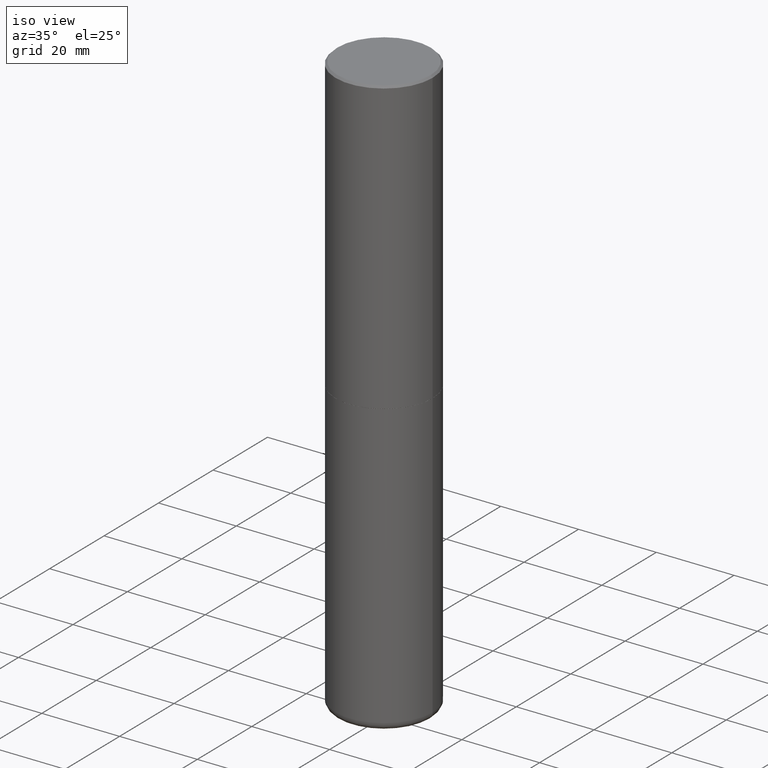
[diagram: clean part render]
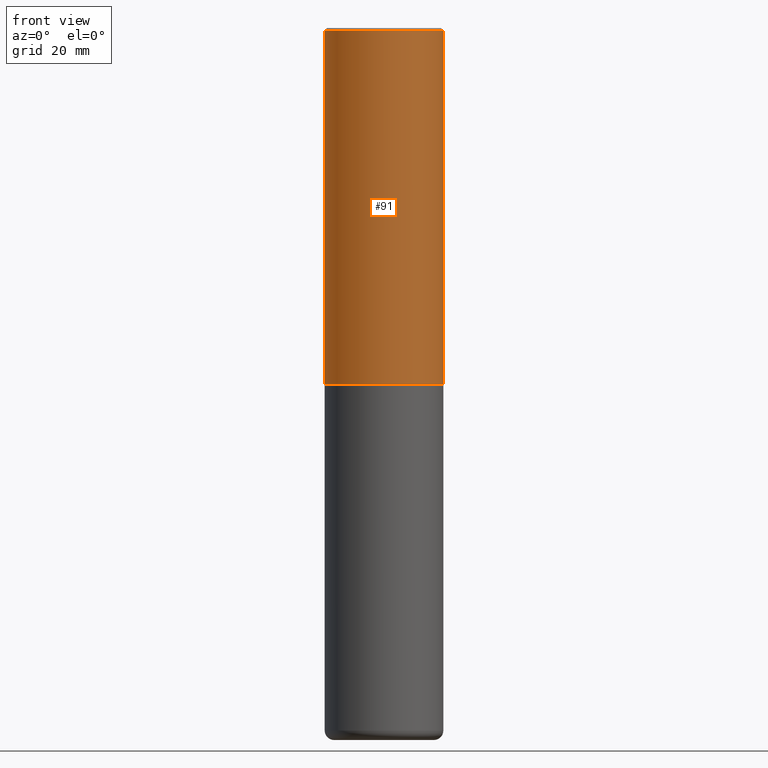
[diagram: tour spotlight — one face highlighted and labeled with its STEP entity id]
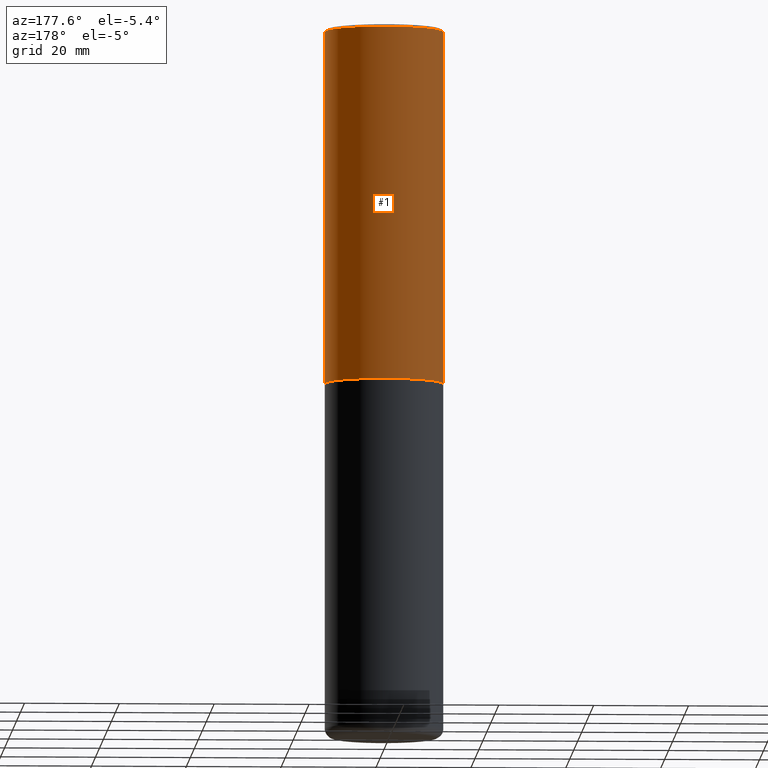
[diagram: tour spotlight — one face highlighted and labeled with its STEP entity id]
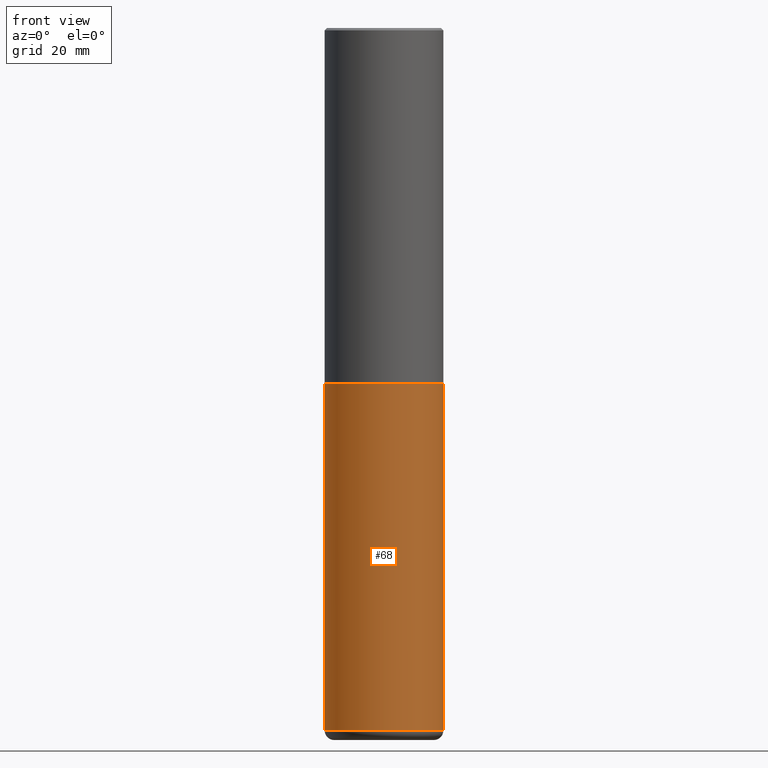
[diagram: tour spotlight — one face highlighted and labeled with its STEP entity id]
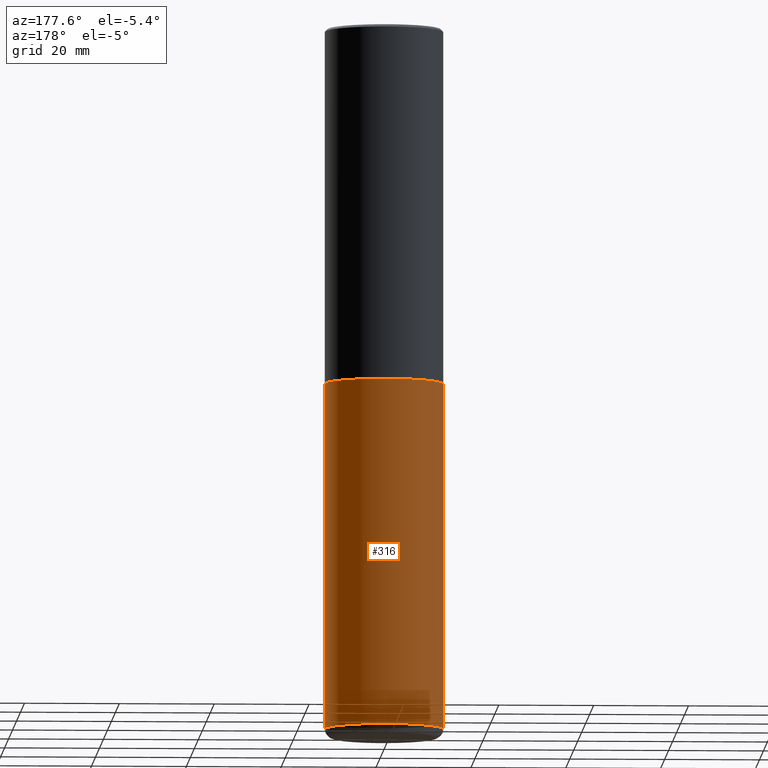
[diagram: tour spotlight — one face highlighted and labeled with its STEP entity id]
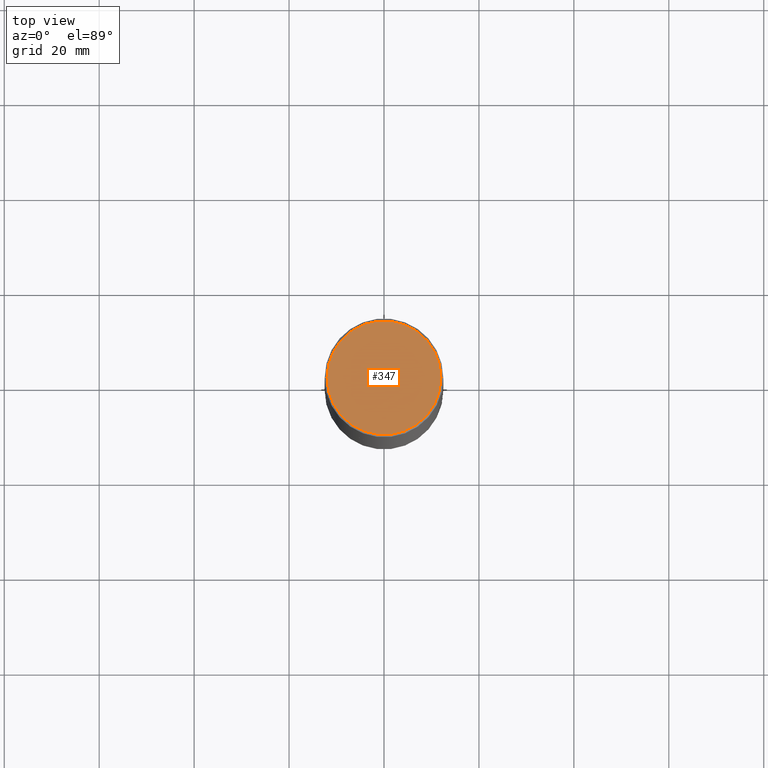
[diagram: tour spotlight — one face highlighted and labeled with its STEP entity id]
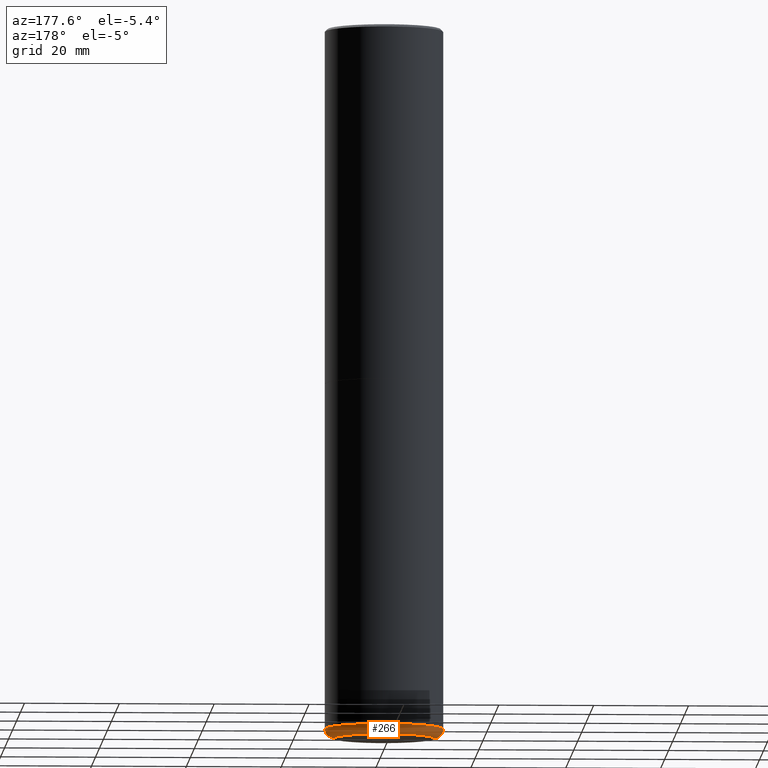
[diagram: tour spotlight — one face highlighted and labeled with its STEP entity id]
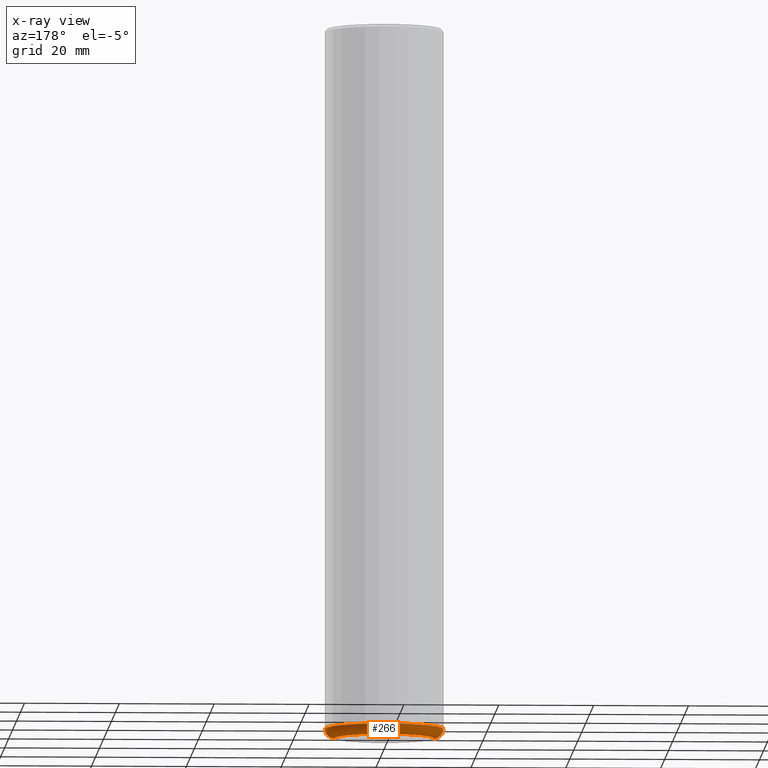
[diagram: x-ray of the same camera — body ghosted, this tour face saturated]
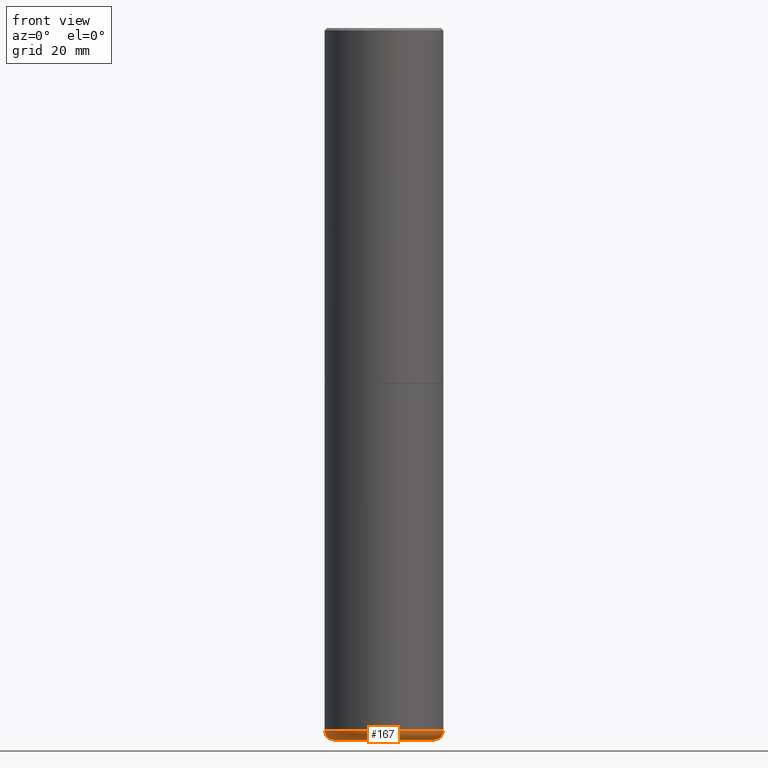
[diagram: tour spotlight — one face highlighted and labeled with its STEP entity id]
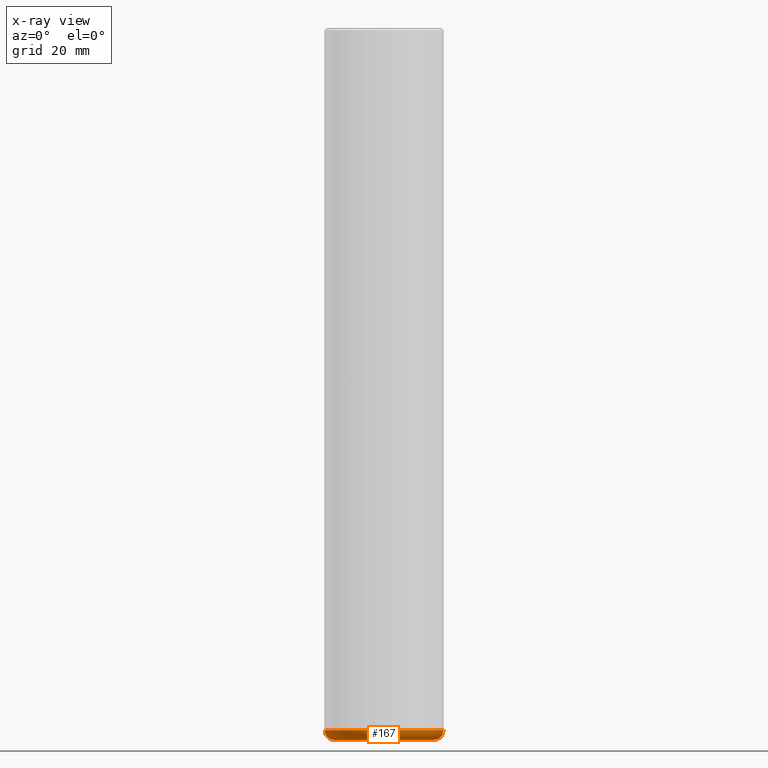
[diagram: x-ray of the same camera — body ghosted, this tour face saturated]
A machine part: a face-by-face anatomy tour. The part has 14 B-rep faces; the first image is the clean iso view, then the 7 largest visible faces are spotlighted one at a time (largest first), each with its STEP entity span.

Face 1 — front view, entity #91. In plain terms, the highlighted cylindrical surface (partial cylindrical patch) has radius 12.5006 mm, axis along (-0, 0, 1).
Definition (entity closure, byte-faithful):
#6 = ORIENTED_EDGE ( 'NONE', *, *, #50, .F. ) ;
#14 = DIRECTION ( 'NONE',  ( -2.445468806185136877E-29, 3.491481338843145188E-15, 1.000000000000000000 ) ) ;
#25 = ORIENTED_EDGE ( 'NONE', *, *, #411, .T. ) ;
#29 = DIRECTION ( 'NONE',  ( -2.445468806185136597E-29, 3.491481338843145583E-15, 1.000000000000000000 ) ) ;
#36 = VERTEX_POINT ( 'NONE', #390 ) ;
#50 = EDGE_CURVE ( 'NONE', #338, #252, #179, .T. ) ;
#70 = VECTOR ( 'NONE', #14, 39.37007874015748143 ) ;
#77 = AXIS2_PLACEMENT_3D ( 'NONE', #333, #29, #335 ) ;
#91 = ADVANCED_FACE ( 'NONE', ( #256 ), #322, .T. ) ;
#140 = EDGE_CURVE ( 'NONE', #338, #273, #337, .T. ) ;
#145 = DIRECTION ( 'NONE',  ( -2.445468806185136597E-29, 3.491481338843145583E-15, 1.000000000000000000 ) ) ;
#153 = DIRECTION ( 'NONE',  ( -2.445468806185136877E-29, 3.491481338843145188E-15, 1.000000000000000000 ) ) ;
#157 = CARTESIAN_POINT ( 'NONE',  ( -0.4921499999999999764, 3.366835455046432478E-15, -0.02000000000000010797 ) ) ;
#163 = CARTESIAN_POINT ( 'NONE',  ( 7.218290275216666916E-29, -1.030580546786331359E-14, -2.951700000000000212 ) ) ;
#174 = EDGE_LOOP ( 'NONE', ( #6, #278, #25, #312 ) ) ;
#175 = LINE ( 'NONE', #315, #70 ) ;
#179 = LINE ( 'NONE', #293, #194 ) ;
#194 = VECTOR ( 'NONE', #153, 39.37007874015748143 ) ;
#216 = EDGE_CURVE ( 'NONE', #252, #36, #326, .T. ) ;
#238 = CARTESIAN_POINT ( 'NONE',  ( -0.4921500000000003094, -1.690881473276751010E-15, -2.951700000000000212 ) ) ;
#252 = VERTEX_POINT ( 'NONE', #157 ) ;
#256 = FACE_OUTER_BOUND ( 'NONE', #174, .T. ) ;
#263 = CARTESIAN_POINT ( 'NONE',  ( 0.000000000000000000, 0.000000000000000000, 0.000000000000000000 ) ) ;
#270 = CARTESIAN_POINT ( 'NONE',  ( 0.4921500000000003094, -1.374247054968661252E-14, -2.951700000000000212 ) ) ;
#271 = DIRECTION ( 'NONE',  ( 1.000000000000000000, -6.982962677686265922E-15, 0.000000000000000000 ) ) ;
#273 = VERTEX_POINT ( 'NONE', #270 ) ;
#274 = AXIS2_PLACEMENT_3D ( 'NONE', #163, #330, #271 ) ;
#278 = ORIENTED_EDGE ( 'NONE', *, *, #140, .T. ) ;
#293 = CARTESIAN_POINT ( 'NONE',  ( -0.4921500000000000874, 3.496936074043333686E-15, -2.420853904668952350E-29 ) ) ;
#312 = ORIENTED_EDGE ( 'NONE', *, *, #216, .F. ) ;
#315 = CARTESIAN_POINT ( 'NONE',  ( 0.4921500000000000874, -3.436665081823296565E-15, 2.399810400207970163E-29 ) ) ;
#322 = CYLINDRICAL_SURFACE ( 'NONE', #375, 0.4921500000000000874 ) ;
#326 = CIRCLE ( 'NONE', #77, 0.4921499999999999764 ) ;
#330 = DIRECTION ( 'NONE',  ( -2.445468806185136597E-29, 3.491481338843145583E-15, 1.000000000000000000 ) ) ;
#333 = CARTESIAN_POINT ( 'NONE',  ( 4.890937612370299433E-31, -6.982962677686328587E-17, -0.02000000000000010797 ) ) ;
#335 = DIRECTION ( 'NONE',  ( 1.000000000000000000, -6.982962677686265922E-15, 0.000000000000000000 ) ) ;
#337 = CIRCLE ( 'NONE', #274, 0.4921500000000003094 ) ;
#338 = VERTEX_POINT ( 'NONE', #238 ) ;
#350 = DIRECTION ( 'NONE',  ( 1.000000000000000000, -6.982962677686265922E-15, 4.876176775795935793E-29 ) ) ;
#375 = AXIS2_PLACEMENT_3D ( 'NONE', #263, #145, #350 ) ;
#390 = CARTESIAN_POINT ( 'NONE',  ( 0.4921499999999999764, -3.446223716380122349E-15, -0.02000000000000010797 ) ) ;
#411 = EDGE_CURVE ( 'NONE', #273, #36, #175, .T. ) ;

Face 2 — auxiliary view, entity #1. In plain terms, the highlighted cylindrical surface (partial cylindrical patch) has radius 12.5006 mm, axis along (-0, 0, 1).
Definition (entity closure, byte-faithful):
#1 = ADVANCED_FACE ( 'NONE', ( #221 ), #219, .T. ) ;
#8 = CIRCLE ( 'NONE', #281, 0.4921500000000003094 ) ;
#14 = DIRECTION ( 'NONE',  ( -2.445468806185136877E-29, 3.491481338843145188E-15, 1.000000000000000000 ) ) ;
#26 = DIRECTION ( 'NONE',  ( -2.445468806185136597E-29, 3.491481338843145583E-15, 1.000000000000000000 ) ) ;
#36 = VERTEX_POINT ( 'NONE', #390 ) ;
#50 = EDGE_CURVE ( 'NONE', #338, #252, #179, .T. ) ;
#55 = EDGE_CURVE ( 'NONE', #273, #338, #8, .T. ) ;
#56 = DIRECTION ( 'NONE',  ( 1.000000000000000000, -6.982962677686265922E-15, 0.000000000000000000 ) ) ;
#70 = VECTOR ( 'NONE', #14, 39.37007874015748143 ) ;
#83 = ORIENTED_EDGE ( 'NONE', *, *, #55, .T. ) ;
#133 = CARTESIAN_POINT ( 'NONE',  ( 4.890937612370299433E-31, -6.982962677686328587E-17, -0.02000000000000010797 ) ) ;
#150 = ORIENTED_EDGE ( 'NONE', *, *, #199, .F. ) ;
#153 = DIRECTION ( 'NONE',  ( -2.445468806185136877E-29, 3.491481338843145188E-15, 1.000000000000000000 ) ) ;
#157 = CARTESIAN_POINT ( 'NONE',  ( -0.4921499999999999764, 3.366835455046432478E-15, -0.02000000000000010797 ) ) ;
#175 = LINE ( 'NONE', #315, #70 ) ;
#178 = AXIS2_PLACEMENT_3D ( 'NONE', #182, #223, #184 ) ;
#179 = LINE ( 'NONE', #293, #194 ) ;
#182 = CARTESIAN_POINT ( 'NONE',  ( 0.000000000000000000, 0.000000000000000000, 0.000000000000000000 ) ) ;
#184 = DIRECTION ( 'NONE',  ( 1.000000000000000000, -6.982962677686265922E-15, 4.876176775795935793E-29 ) ) ;
#194 = VECTOR ( 'NONE', #153, 39.37007874015748143 ) ;
#199 = EDGE_CURVE ( 'NONE', #36, #252, #398, .T. ) ;
#213 = ORIENTED_EDGE ( 'NONE', *, *, #411, .F. ) ;
#219 = CYLINDRICAL_SURFACE ( 'NONE', #178, 0.4921500000000000874 ) ;
#221 = FACE_OUTER_BOUND ( 'NONE', #355, .T. ) ;
#223 = DIRECTION ( 'NONE',  ( -2.445468806185136597E-29, 3.491481338843145583E-15, 1.000000000000000000 ) ) ;
#238 = CARTESIAN_POINT ( 'NONE',  ( -0.4921500000000003094, -1.690881473276751010E-15, -2.951700000000000212 ) ) ;
#252 = VERTEX_POINT ( 'NONE', #157 ) ;
#270 = CARTESIAN_POINT ( 'NONE',  ( 0.4921500000000003094, -1.374247054968661252E-14, -2.951700000000000212 ) ) ;
#273 = VERTEX_POINT ( 'NONE', #270 ) ;
#281 = AXIS2_PLACEMENT_3D ( 'NONE', #353, #295, #56 ) ;
#293 = CARTESIAN_POINT ( 'NONE',  ( -0.4921500000000000874, 3.496936074043333686E-15, -2.420853904668952350E-29 ) ) ;
#295 = DIRECTION ( 'NONE',  ( -2.445468806185136597E-29, 3.491481338843145583E-15, 1.000000000000000000 ) ) ;
#297 = DIRECTION ( 'NONE',  ( 1.000000000000000000, -6.982962677686265922E-15, 0.000000000000000000 ) ) ;
#298 = AXIS2_PLACEMENT_3D ( 'NONE', #133, #26, #297 ) ;
#315 = CARTESIAN_POINT ( 'NONE',  ( 0.4921500000000000874, -3.436665081823296565E-15, 2.399810400207970163E-29 ) ) ;
#338 = VERTEX_POINT ( 'NONE', #238 ) ;
#353 = CARTESIAN_POINT ( 'NONE',  ( 7.218290275216666916E-29, -1.030580546786331359E-14, -2.951700000000000212 ) ) ;
#355 = EDGE_LOOP ( 'NONE', ( #83, #397, #150, #213 ) ) ;
#390 = CARTESIAN_POINT ( 'NONE',  ( 0.4921499999999999764, -3.446223716380122349E-15, -0.02000000000000010797 ) ) ;
#397 = ORIENTED_EDGE ( 'NONE', *, *, #50, .T. ) ;
#398 = CIRCLE ( 'NONE', #298, 0.4921499999999999764 ) ;
#411 = EDGE_CURVE ( 'NONE', #273, #36, #175, .T. ) ;

Face 3 — front view, entity #68. In plain terms, the highlighted cylindrical surface (partial cylindrical patch) has radius 12.5006 mm, axis along (-0, 0, 1).
Definition (entity closure, byte-faithful):
#10 = VERTEX_POINT ( 'NONE', #86 ) ;
#57 = VECTOR ( 'NONE', #400, 39.37007874015748143 ) ;
#68 = ADVANCED_FACE ( 'NONE', ( #358 ), #388, .T. ) ;
#69 = CARTESIAN_POINT ( 'NONE',  ( 7.220735744022852519E-29, -1.030929694920215502E-14, -2.952700000000000102 ) ) ;
#75 = AXIS2_PLACEMENT_3D ( 'NONE', #69, #207, #168 ) ;
#86 = CARTESIAN_POINT ( 'NONE',  ( -0.4921500000000000874, -1.684722739112790810E-14, -5.826799999999999535 ) ) ;
#100 = AXIS2_PLACEMENT_3D ( 'NONE', #190, #185, #329 ) ;
#116 = CIRCLE ( 'NONE', #248, 0.4921499999999999764 ) ;
#120 = VERTEX_POINT ( 'NONE', #288 ) ;
#126 = LINE ( 'NONE', #265, #269 ) ;
#130 = CARTESIAN_POINT ( 'NONE',  ( 0.4921499999999999764, -1.374596203102545079E-14, -2.952700000000000102 ) ) ;
#139 = DIRECTION ( 'NONE',  ( 1.000000000000000000, -6.982962677686265922E-15, 0.000000000000000000 ) ) ;
#154 = VERTEX_POINT ( 'NONE', #130 ) ;
#168 = DIRECTION ( 'NONE',  ( 1.000000000000000000, -6.982962677686265922E-15, 0.000000000000000000 ) ) ;
#171 = ORIENTED_EDGE ( 'NONE', *, *, #299, .T. ) ;
#185 = DIRECTION ( 'NONE',  ( -2.445468806185136597E-29, 3.491481338843145583E-15, 1.000000000000000000 ) ) ;
#190 = CARTESIAN_POINT ( 'NONE',  ( 0.000000000000000000, 0.000000000000000000, 0.000000000000000000 ) ) ;
#203 = EDGE_CURVE ( 'NONE', #10, #205, #126, .T. ) ;
#205 = VERTEX_POINT ( 'NONE', #331 ) ;
#207 = DIRECTION ( 'NONE',  ( -2.445468806185136597E-29, 3.491481338843145583E-15, 1.000000000000000000 ) ) ;
#208 = ORIENTED_EDGE ( 'NONE', *, *, #289, .F. ) ;
#209 = CARTESIAN_POINT ( 'NONE',  ( 1.424925763987955342E-28, -2.034416346517123863E-14, -5.826799999999999535 ) ) ;
#248 = AXIS2_PLACEMENT_3D ( 'NONE', #209, #249, #139 ) ;
#249 = DIRECTION ( 'NONE',  ( -2.445468806185136597E-29, 3.491481338843145583E-15, 1.000000000000000000 ) ) ;
#265 = CARTESIAN_POINT ( 'NONE',  ( -0.4921499999999999764, 3.496936074043332897E-15, -2.420853904668951509E-29 ) ) ;
#269 = VECTOR ( 'NONE', #336, 39.37007874015748143 ) ;
#279 = LINE ( 'NONE', #341, #57 ) ;
#288 = CARTESIAN_POINT ( 'NONE',  ( 0.4921500000000000874, -2.378082854699453914E-14, -5.826799999999999535 ) ) ;
#289 = EDGE_CURVE ( 'NONE', #205, #154, #317, .T. ) ;
#299 = EDGE_CURVE ( 'NONE', #10, #120, #116, .T. ) ;
#317 = CIRCLE ( 'NONE', #75, 0.4921499999999999764 ) ;
#324 = ORIENTED_EDGE ( 'NONE', *, *, #203, .F. ) ;
#329 = DIRECTION ( 'NONE',  ( 1.000000000000000000, -6.982962677686265922E-15, 4.876176775795935793E-29 ) ) ;
#331 = CARTESIAN_POINT ( 'NONE',  ( -0.4921499999999999764, -1.182979413314336550E-14, -2.952700000000000102 ) ) ;
#334 = EDGE_CURVE ( 'NONE', #120, #154, #279, .T. ) ;
#336 = DIRECTION ( 'NONE',  ( -2.445468806185136877E-29, 3.491481338843145188E-15, 1.000000000000000000 ) ) ;
#341 = CARTESIAN_POINT ( 'NONE',  ( 0.4921499999999999764, -3.436665081823295777E-15, 2.399810400207969603E-29 ) ) ;
#358 = FACE_OUTER_BOUND ( 'NONE', #386, .T. ) ;
#371 = ORIENTED_EDGE ( 'NONE', *, *, #334, .T. ) ;
#386 = EDGE_LOOP ( 'NONE', ( #324, #171, #371, #208 ) ) ;
#388 = CYLINDRICAL_SURFACE ( 'NONE', #100, 0.4921499999999999764 ) ;
#400 = DIRECTION ( 'NONE',  ( -2.445468806185136877E-29, 3.491481338843145188E-15, 1.000000000000000000 ) ) ;

Face 4 — auxiliary view, entity #316. In plain terms, the highlighted cylindrical surface (partial cylindrical patch) has radius 12.5006 mm, axis along (-0, 0, 1).
Definition (entity closure, byte-faithful):
#10 = VERTEX_POINT ( 'NONE', #86 ) ;
#17 = DIRECTION ( 'NONE',  ( 1.000000000000000000, -6.982962677686265922E-15, 0.000000000000000000 ) ) ;
#30 = DIRECTION ( 'NONE',  ( -2.445468806185136597E-29, 3.491481338843145583E-15, 1.000000000000000000 ) ) ;
#39 = ORIENTED_EDGE ( 'NONE', *, *, #203, .T. ) ;
#48 = CARTESIAN_POINT ( 'NONE',  ( 1.424925763987955342E-28, -2.034416346517123863E-14, -5.826799999999999535 ) ) ;
#49 = AXIS2_PLACEMENT_3D ( 'NONE', #362, #30, #96 ) ;
#57 = VECTOR ( 'NONE', #400, 39.37007874015748143 ) ;
#86 = CARTESIAN_POINT ( 'NONE',  ( -0.4921500000000000874, -1.684722739112790810E-14, -5.826799999999999535 ) ) ;
#96 = DIRECTION ( 'NONE',  ( 1.000000000000000000, -6.982962677686265922E-15, 0.000000000000000000 ) ) ;
#102 = DIRECTION ( 'NONE',  ( -2.445468806185136597E-29, 3.491481338843145583E-15, 1.000000000000000000 ) ) ;
#106 = AXIS2_PLACEMENT_3D ( 'NONE', #277, #102, #396 ) ;
#111 = EDGE_CURVE ( 'NONE', #120, #10, #369, .T. ) ;
#118 = EDGE_LOOP ( 'NONE', ( #314, #39, #374, #342 ) ) ;
#120 = VERTEX_POINT ( 'NONE', #288 ) ;
#126 = LINE ( 'NONE', #265, #269 ) ;
#130 = CARTESIAN_POINT ( 'NONE',  ( 0.4921499999999999764, -1.374596203102545079E-14, -2.952700000000000102 ) ) ;
#135 = CYLINDRICAL_SURFACE ( 'NONE', #106, 0.4921499999999999764 ) ;
#141 = FACE_OUTER_BOUND ( 'NONE', #118, .T. ) ;
#154 = VERTEX_POINT ( 'NONE', #130 ) ;
#203 = EDGE_CURVE ( 'NONE', #10, #205, #126, .T. ) ;
#205 = VERTEX_POINT ( 'NONE', #331 ) ;
#218 = AXIS2_PLACEMENT_3D ( 'NONE', #48, #320, #17 ) ;
#245 = EDGE_CURVE ( 'NONE', #154, #205, #389, .T. ) ;
#265 = CARTESIAN_POINT ( 'NONE',  ( -0.4921499999999999764, 3.496936074043332897E-15, -2.420853904668951509E-29 ) ) ;
#269 = VECTOR ( 'NONE', #336, 39.37007874015748143 ) ;
#277 = CARTESIAN_POINT ( 'NONE',  ( 0.000000000000000000, 0.000000000000000000, 0.000000000000000000 ) ) ;
#279 = LINE ( 'NONE', #341, #57 ) ;
#288 = CARTESIAN_POINT ( 'NONE',  ( 0.4921500000000000874, -2.378082854699453914E-14, -5.826799999999999535 ) ) ;
#314 = ORIENTED_EDGE ( 'NONE', *, *, #111, .T. ) ;
#316 = ADVANCED_FACE ( 'NONE', ( #141 ), #135, .T. ) ;
#320 = DIRECTION ( 'NONE',  ( -2.445468806185136597E-29, 3.491481338843145583E-15, 1.000000000000000000 ) ) ;
#331 = CARTESIAN_POINT ( 'NONE',  ( -0.4921499999999999764, -1.182979413314336550E-14, -2.952700000000000102 ) ) ;
#334 = EDGE_CURVE ( 'NONE', #120, #154, #279, .T. ) ;
#336 = DIRECTION ( 'NONE',  ( -2.445468806185136877E-29, 3.491481338843145188E-15, 1.000000000000000000 ) ) ;
#341 = CARTESIAN_POINT ( 'NONE',  ( 0.4921499999999999764, -3.436665081823295777E-15, 2.399810400207969603E-29 ) ) ;
#342 = ORIENTED_EDGE ( 'NONE', *, *, #334, .F. ) ;
#362 = CARTESIAN_POINT ( 'NONE',  ( 7.220735744022852519E-29, -1.030929694920215502E-14, -2.952700000000000102 ) ) ;
#369 = CIRCLE ( 'NONE', #218, 0.4921499999999999764 ) ;
#374 = ORIENTED_EDGE ( 'NONE', *, *, #245, .F. ) ;
#389 = CIRCLE ( 'NONE', #49, 0.4921499999999999764 ) ;
#396 = DIRECTION ( 'NONE',  ( 1.000000000000000000, -6.982962677686265922E-15, 4.876176775795935793E-29 ) ) ;
#400 = DIRECTION ( 'NONE',  ( -2.445468806185136877E-29, 3.491481338843145188E-15, 1.000000000000000000 ) ) ;

Face 5 — top view, entity #347. In plain terms, the highlighted planar face has unit normal (0, -0, -1).
Definition (entity closure, byte-faithful):
#11 = CARTESIAN_POINT ( 'NONE',  ( 4.071020515907357082E-45, -5.812338364483744108E-31, -1.664719871139160491E-16 ) ) ;
#32 = CIRCLE ( 'NONE', #309, 0.4721500000000000696 ) ;
#42 = CARTESIAN_POINT ( 'NONE',  ( 3.297005828269570364E-15, 0.4721500000000000696, -1.731738907691749419E-15 ) ) ;
#43 = VERTEX_POINT ( 'NONE', #356 ) ;
#45 = DIRECTION ( 'NONE',  ( 1.000000000000000000, -6.982962677686266711E-15, 4.875605319575677862E-29 ) ) ;
#58 = ORIENTED_EDGE ( 'NONE', *, *, #340, .T. ) ;
#71 = DIRECTION ( 'NONE',  ( -2.445468806185136597E-29, 3.491481338843145583E-15, 1.000000000000000000 ) ) ;
#78 = DIRECTION ( 'NONE',  ( -1.000000000000000000, 6.982962677686265922E-15, -4.876176775795935793E-29 ) ) ;
#81 = ORIENTED_EDGE ( 'NONE', *, *, #379, .T. ) ;
#99 = DIRECTION ( 'NONE',  ( -2.445468806185136597E-29, 3.491481338843145583E-15, 1.000000000000000000 ) ) ;
#104 = DIRECTION ( 'NONE',  ( 1.000000000000000000, -6.982962677686266711E-15, 4.875605319575677862E-29 ) ) ;
#105 = FACE_OUTER_BOUND ( 'NONE', #410, .T. ) ;
#112 = VERTEX_POINT ( 'NONE', #286 ) ;
#246 = CARTESIAN_POINT ( 'NONE',  ( 4.071020515907357082E-45, -5.812338364483744108E-31, -1.664719871139160491E-16 ) ) ;
#264 = AXIS2_PLACEMENT_3D ( 'NONE', #11, #99, #45 ) ;
#276 = DIRECTION ( 'NONE',  ( 2.438088387897960049E-29, -3.491481338843145188E-15, -1.000000000000000000 ) ) ;
#286 = CARTESIAN_POINT ( 'NONE',  ( 0.4721500000000000696, -3.342703923013975763E-15, -1.664719871138928270E-16 ) ) ;
#309 = AXIS2_PLACEMENT_3D ( 'NONE', #246, #71, #104 ) ;
#340 = EDGE_CURVE ( 'NONE', #43, #112, #32, .T. ) ;
#347 = ADVANCED_FACE ( 'NONE', ( #105 ), #376, .F. ) ;
#356 = CARTESIAN_POINT ( 'NONE',  ( -0.4721500000000000696, 3.331920641658001618E-15, -1.664719871139392219E-16 ) ) ;
#363 = AXIS2_PLACEMENT_3D ( 'NONE', #42, #276, #78 ) ;
#376 = PLANE ( 'NONE',  #363 ) ;
#379 = EDGE_CURVE ( 'NONE', #112, #43, #404, .T. ) ;
#404 = CIRCLE ( 'NONE', #264, 0.4721500000000000696 ) ;
#410 = EDGE_LOOP ( 'NONE', ( #58, #81 ) ) ;

Face 6 — auxiliary view, entity #266. An x-ray twin of the same camera follows (body ghosted, this face saturated) — the face is partly hidden behind the body. In plain terms, the highlighted toroidal blend (fillet) surface has major radius 10.5016 mm and minor (blend) radius 1.999 mm.
Definition (entity closure, byte-faithful):
#10 = VERTEX_POINT ( 'NONE', #86 ) ;
#17 = DIRECTION ( 'NONE',  ( 1.000000000000000000, -6.982962677686265922E-15, 0.000000000000000000 ) ) ;
#19 = DIRECTION ( 'NONE',  ( 7.105427357601001859E-15, 1.000000000000000000, -3.491481338843145583E-15 ) ) ;
#22 = CIRCLE ( 'NONE', #343, 0.07870000000000024198 ) ;
#46 = ORIENTED_EDGE ( 'NONE', *, *, #111, .F. ) ;
#48 = CARTESIAN_POINT ( 'NONE',  ( 1.424925763987955342E-28, -2.034416346517123863E-14, -5.826799999999999535 ) ) ;
#52 = CARTESIAN_POINT ( 'NONE',  ( 0.4134499999999999287, -2.323126938426062930E-14, -5.826799999999999535 ) ) ;
#66 = EDGE_CURVE ( 'NONE', #262, #120, #232, .T. ) ;
#67 = DIRECTION ( 'NONE',  ( -2.445468806185136597E-29, 3.491481338843145583E-15, 1.000000000000000000 ) ) ;
#86 = CARTESIAN_POINT ( 'NONE',  ( -0.4921500000000000874, -1.684722739112790810E-14, -5.826799999999999535 ) ) ;
#111 = EDGE_CURVE ( 'NONE', #120, #10, #369, .T. ) ;
#113 = EDGE_CURVE ( 'NONE', #253, #10, #22, .T. ) ;
#120 = VERTEX_POINT ( 'NONE', #288 ) ;
#131 = AXIS2_PLACEMENT_3D ( 'NONE', #394, #67, #198 ) ;
#132 = FACE_OUTER_BOUND ( 'NONE', #372, .T. ) ;
#136 = CIRCLE ( 'NONE', #156, 0.4134499999999999287 ) ;
#147 = DIRECTION ( 'NONE',  ( -1.000000000000000000, 7.105427357600995548E-15, 0.000000000000000000 ) ) ;
#151 = AXIS2_PLACEMENT_3D ( 'NONE', #52, #226, #413 ) ;
#156 = AXIS2_PLACEMENT_3D ( 'NONE', #165, #308, #373 ) ;
#165 = CARTESIAN_POINT ( 'NONE',  ( 1.444171603492632270E-28, -2.061894304653819197E-14, -5.905499999999999972 ) ) ;
#176 = ORIENTED_EDGE ( 'NONE', *, *, #66, .F. ) ;
#198 = DIRECTION ( 'NONE',  ( 1.000000000000000000, -6.982962677686263555E-15, 4.883557194083111219E-29 ) ) ;
#218 = AXIS2_PLACEMENT_3D ( 'NONE', #48, #320, #17 ) ;
#226 = DIRECTION ( 'NONE',  ( -6.982962677686266711E-15, -1.000000000000000000, 3.491481338843145583E-15 ) ) ;
#232 = CIRCLE ( 'NONE', #151, 0.07870000000000024198 ) ;
#253 = VERTEX_POINT ( 'NONE', #300 ) ;
#255 = TOROIDAL_SURFACE ( 'NONE', #131, 0.4134499999999999287, 0.07870000000000024198 ) ;
#262 = VERTEX_POINT ( 'NONE', #392 ) ;
#266 = ADVANCED_FACE ( 'NONE', ( #132 ), #255, .T. ) ;
#288 = CARTESIAN_POINT ( 'NONE',  ( 0.4921500000000000874, -2.378082854699453914E-14, -5.826799999999999535 ) ) ;
#300 = CARTESIAN_POINT ( 'NONE',  ( -0.4134499999999999287, -1.726421574833298258E-14, -5.905499999999999972 ) ) ;
#303 = EDGE_CURVE ( 'NONE', #262, #253, #136, .T. ) ;
#308 = DIRECTION ( 'NONE',  ( -2.445468806185136597E-29, 3.491481338843145583E-15, 1.000000000000000000 ) ) ;
#320 = DIRECTION ( 'NONE',  ( -2.445468806185136597E-29, 3.491481338843145583E-15, 1.000000000000000000 ) ) ;
#343 = AXIS2_PLACEMENT_3D ( 'NONE', #381, #19, #147 ) ;
#369 = CIRCLE ( 'NONE', #218, 0.4921499999999999764 ) ;
#372 = EDGE_LOOP ( 'NONE', ( #403, #384, #46, #176 ) ) ;
#373 = DIRECTION ( 'NONE',  ( 1.000000000000000000, -6.982962677686261977E-15, 0.000000000000000000 ) ) ;
#381 = CARTESIAN_POINT ( 'NONE',  ( -0.4134499999999999287, -1.740642452417110689E-14, -5.826799999999999535 ) ) ;
#384 = ORIENTED_EDGE ( 'NONE', *, *, #113, .T. ) ;
#392 = CARTESIAN_POINT ( 'NONE',  ( 0.4134499999999999287, -2.350604896562757633E-14, -5.905499999999999972 ) ) ;
#394 = CARTESIAN_POINT ( 'NONE',  ( 1.424925763987955342E-28, -2.034416346517123863E-14, -5.826799999999999535 ) ) ;
#403 = ORIENTED_EDGE ( 'NONE', *, *, #303, .T. ) ;
#413 = DIRECTION ( 'NONE',  ( 1.000000000000000000, -6.982962677686273810E-15, 0.000000000000000000 ) ) ;

Face 7 — front view, entity #167. An x-ray twin of the same camera follows (body ghosted, this face saturated) — the face is partly hidden behind the body. In plain terms, the highlighted toroidal blend (fillet) surface has major radius 10.5016 mm and minor (blend) radius 1.999 mm.
Definition (entity closure, byte-faithful):
#2 = DIRECTION ( 'NONE',  ( -2.445468806185136597E-29, 3.491481338843145583E-15, 1.000000000000000000 ) ) ;
#10 = VERTEX_POINT ( 'NONE', #86 ) ;
#13 = ORIENTED_EDGE ( 'NONE', *, *, #299, .F. ) ;
#19 = DIRECTION ( 'NONE',  ( 7.105427357601001859E-15, 1.000000000000000000, -3.491481338843145583E-15 ) ) ;
#21 = ORIENTED_EDGE ( 'NONE', *, *, #66, .T. ) ;
#22 = CIRCLE ( 'NONE', #343, 0.07870000000000024198 ) ;
#40 = AXIS2_PLACEMENT_3D ( 'NONE', #305, #228, #230 ) ;
#52 = CARTESIAN_POINT ( 'NONE',  ( 0.4134499999999999287, -2.323126938426062930E-14, -5.826799999999999535 ) ) ;
#60 = DIRECTION ( 'NONE',  ( 1.000000000000000000, -6.982962677686261977E-15, 0.000000000000000000 ) ) ;
#66 = EDGE_CURVE ( 'NONE', #262, #120, #232, .T. ) ;
#86 = CARTESIAN_POINT ( 'NONE',  ( -0.4921500000000000874, -1.684722739112790810E-14, -5.826799999999999535 ) ) ;
#87 = ORIENTED_EDGE ( 'NONE', *, *, #121, .T. ) ;
#113 = EDGE_CURVE ( 'NONE', #253, #10, #22, .T. ) ;
#116 = CIRCLE ( 'NONE', #248, 0.4921499999999999764 ) ;
#120 = VERTEX_POINT ( 'NONE', #288 ) ;
#121 = EDGE_CURVE ( 'NONE', #253, #262, #351, .T. ) ;
#139 = DIRECTION ( 'NONE',  ( 1.000000000000000000, -6.982962677686265922E-15, 0.000000000000000000 ) ) ;
#147 = DIRECTION ( 'NONE',  ( -1.000000000000000000, 7.105427357600995548E-15, 0.000000000000000000 ) ) ;
#151 = AXIS2_PLACEMENT_3D ( 'NONE', #52, #226, #413 ) ;
#167 = ADVANCED_FACE ( 'NONE', ( #391 ), #210, .T. ) ;
#197 = CARTESIAN_POINT ( 'NONE',  ( 1.444171603492632270E-28, -2.061894304653819197E-14, -5.905499999999999972 ) ) ;
#209 = CARTESIAN_POINT ( 'NONE',  ( 1.424925763987955342E-28, -2.034416346517123863E-14, -5.826799999999999535 ) ) ;
#210 = TOROIDAL_SURFACE ( 'NONE', #40, 0.4134499999999999287, 0.07870000000000024198 ) ;
#226 = DIRECTION ( 'NONE',  ( -6.982962677686266711E-15, -1.000000000000000000, 3.491481338843145583E-15 ) ) ;
#227 = AXIS2_PLACEMENT_3D ( 'NONE', #197, #2, #60 ) ;
#228 = DIRECTION ( 'NONE',  ( -2.445468806185136597E-29, 3.491481338843145583E-15, 1.000000000000000000 ) ) ;
#230 = DIRECTION ( 'NONE',  ( 1.000000000000000000, -6.982962677686263555E-15, 4.883557194083111219E-29 ) ) ;
#232 = CIRCLE ( 'NONE', #151, 0.07870000000000024198 ) ;
#247 = EDGE_LOOP ( 'NONE', ( #405, #87, #21, #13 ) ) ;
#248 = AXIS2_PLACEMENT_3D ( 'NONE', #209, #249, #139 ) ;
#249 = DIRECTION ( 'NONE',  ( -2.445468806185136597E-29, 3.491481338843145583E-15, 1.000000000000000000 ) ) ;
#253 = VERTEX_POINT ( 'NONE', #300 ) ;
#262 = VERTEX_POINT ( 'NONE', #392 ) ;
#288 = CARTESIAN_POINT ( 'NONE',  ( 0.4921500000000000874, -2.378082854699453914E-14, -5.826799999999999535 ) ) ;
#299 = EDGE_CURVE ( 'NONE', #10, #120, #116, .T. ) ;
#300 = CARTESIAN_POINT ( 'NONE',  ( -0.4134499999999999287, -1.726421574833298258E-14, -5.905499999999999972 ) ) ;
#305 = CARTESIAN_POINT ( 'NONE',  ( 1.424925763987955342E-28, -2.034416346517123863E-14, -5.826799999999999535 ) ) ;
#343 = AXIS2_PLACEMENT_3D ( 'NONE', #381, #19, #147 ) ;
#351 = CIRCLE ( 'NONE', #227, 0.4134499999999999287 ) ;
#381 = CARTESIAN_POINT ( 'NONE',  ( -0.4134499999999999287, -1.740642452417110689E-14, -5.826799999999999535 ) ) ;
#391 = FACE_OUTER_BOUND ( 'NONE', #247, .T. ) ;
#392 = CARTESIAN_POINT ( 'NONE',  ( 0.4134499999999999287, -2.350604896562757633E-14, -5.905499999999999972 ) ) ;
#405 = ORIENTED_EDGE ( 'NONE', *, *, #113, .F. ) ;
#413 = DIRECTION ( 'NONE',  ( 1.000000000000000000, -6.982962677686273810E-15, 0.000000000000000000 ) ) ;